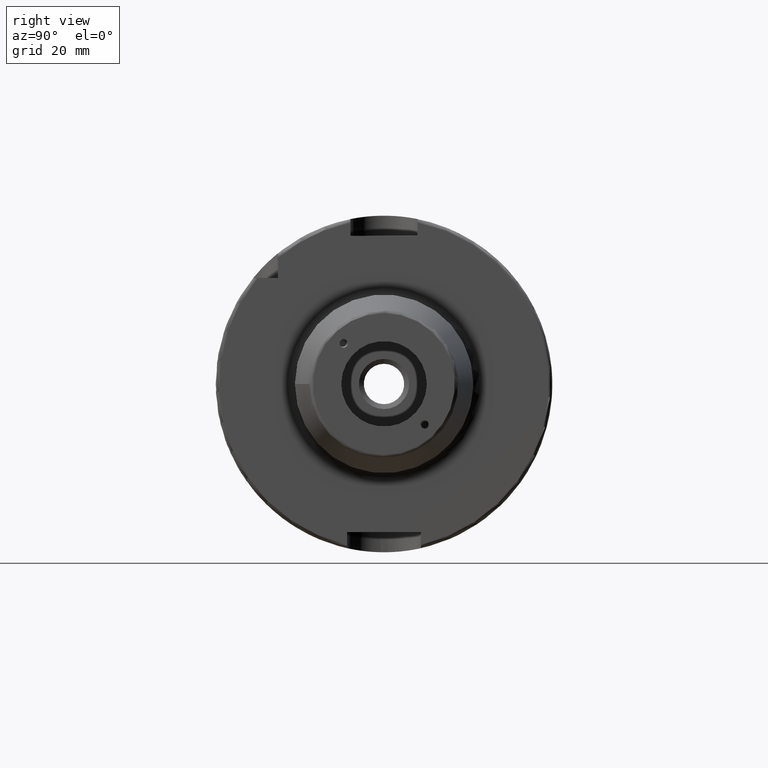
[diagram: clean part render]
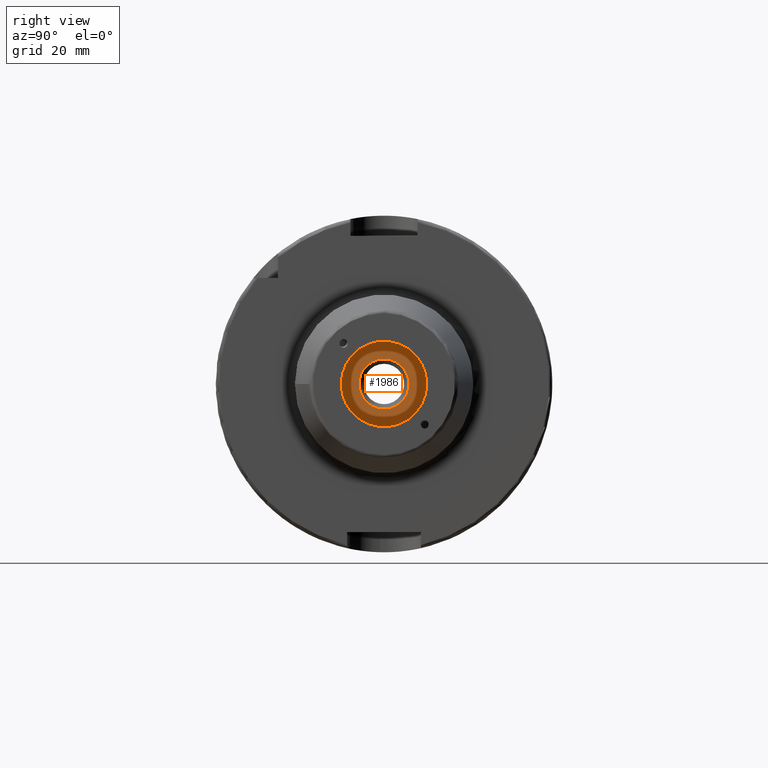
[diagram: same view with one face highlighted and labeled with its STEP entity id]
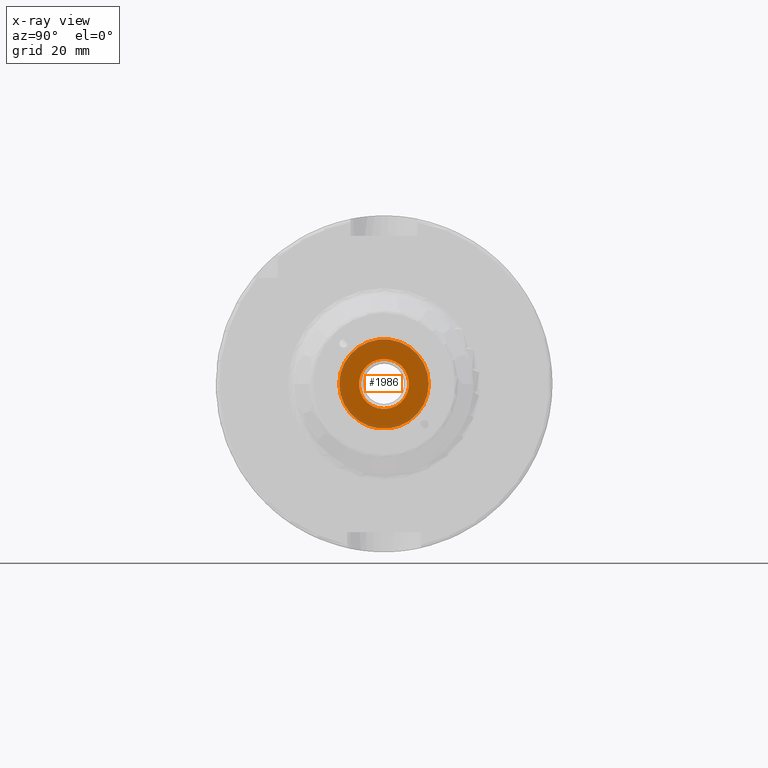
[diagram: x-ray of the same camera — body ghosted, the highlighted face saturated]
A machine part, right view. The second image highlights one B-rep face of the part: STEP entity #1986.
The next image is the same camera in x-ray: the body ghosted, the highlighted face saturated — about 13% of this face is hidden behind the body in this view.
In plain terms, the highlighted planar face has unit normal (1, 0, 0).
Its self-contained STEP definition (entity closure, byte-faithful):
#90=FACE_BOUND('',#349,.T.);
#101=PLANE('',#2153);
#224=FACE_OUTER_BOUND('',#348,.T.);
#348=EDGE_LOOP('',(#1397));
#349=EDGE_LOOP('',(#1398));
#691=CIRCLE('',#2144,7.458734);
#695=CIRCLE('',#2152,13.3);
#831=VERTEX_POINT('',#3068);
#835=VERTEX_POINT('',#3083);
#1043=EDGE_CURVE('',#831,#831,#691,.T.);
#1051=EDGE_CURVE('',#835,#835,#695,.T.);
#1397=ORIENTED_EDGE('',*,*,#1051,.T.);
#1398=ORIENTED_EDGE('',*,*,#1043,.T.);
#1986=ADVANCED_FACE('',(#224,#90),#101,.T.);
#2144=AXIS2_PLACEMENT_3D('',#3069,#2450,#2451);
#2152=AXIS2_PLACEMENT_3D('',#3085,#2470,#2471);
#2153=AXIS2_PLACEMENT_3D('',#3086,#2472,#2473);
#2450=DIRECTION('center_axis',(-1.,0.,0.));
#2451=DIRECTION('ref_axis',(0.,0.,-1.));
#2470=DIRECTION('center_axis',(1.,0.,0.));
#2471=DIRECTION('ref_axis',(0.,0.,-1.));
#2472=DIRECTION('center_axis',(1.,0.,0.));
#2473=DIRECTION('ref_axis',(0.,0.,-1.));
#3068=CARTESIAN_POINT('',(55.,-9.13431471879154E-16,7.458734));
#3069=CARTESIAN_POINT('Origin',(55.,0.,0.));
#3083=CARTESIAN_POINT('',(55.,-13.3,-1.62878024286598E-15));
#3085=CARTESIAN_POINT('Origin',(55.,0.,0.));
#3086=CARTESIAN_POINT('Origin',(55.,-8.88178419700125E-15,0.));